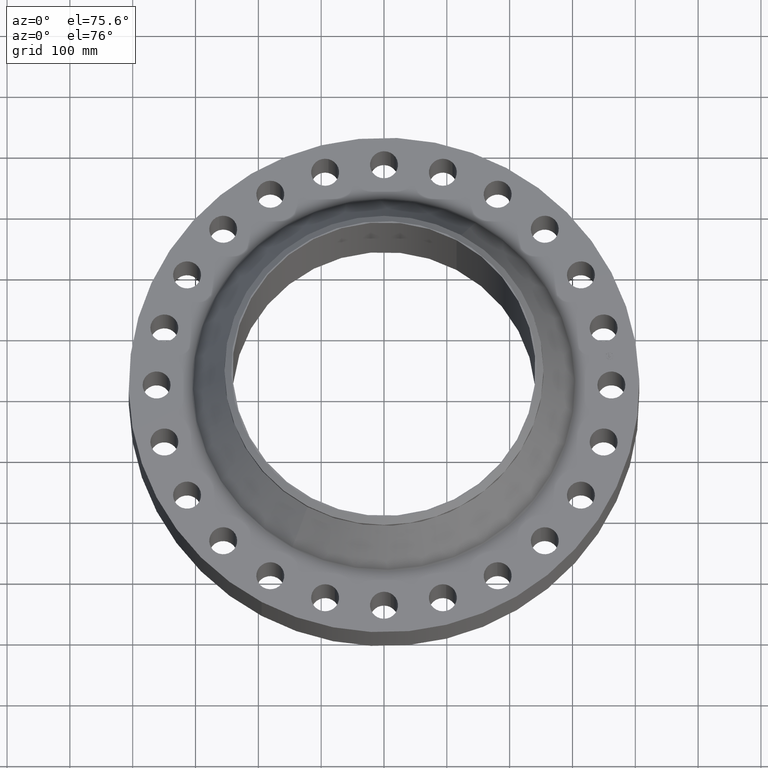
[diagram: clean part render]
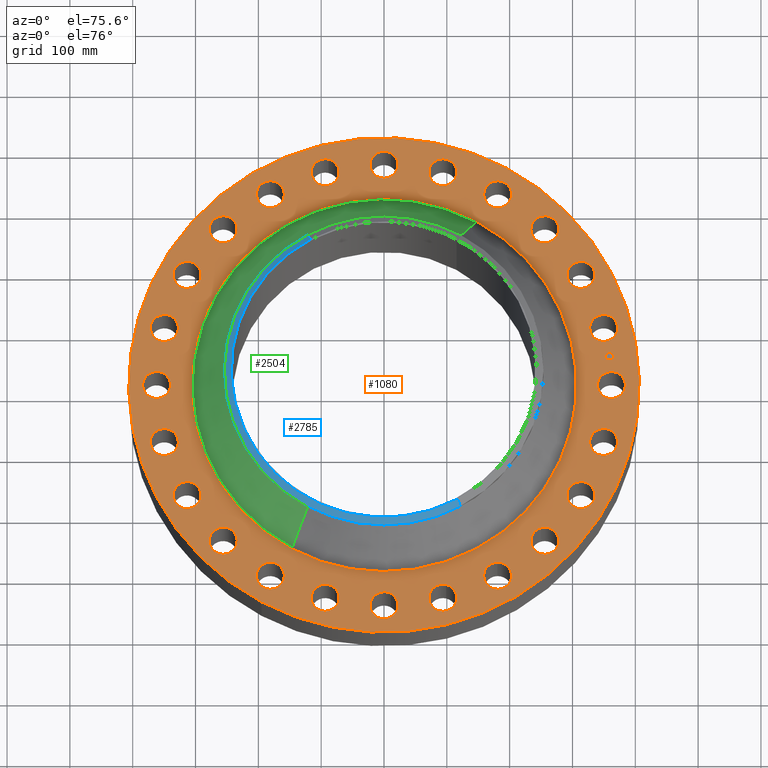
[diagram: same view with three faces highlighted in distinct colors, each labeled with its STEP entity id]
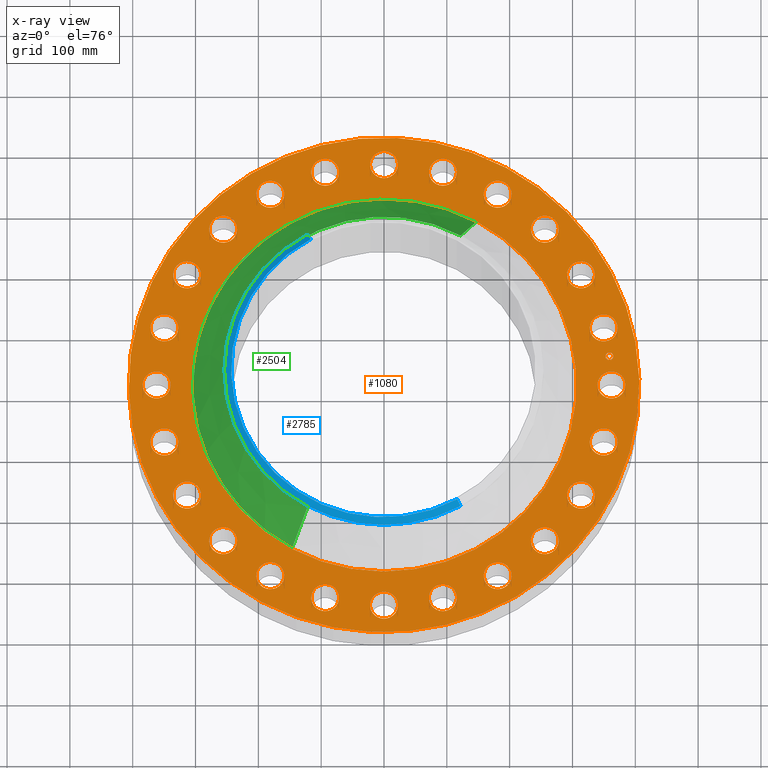
[diagram: x-ray of the same camera — body ghosted, the three highlighted faces saturated]
A machine part, auxiliary view with three faces highlighted in distinct colors.
The next image is the same camera in x-ray (body ghosted, the three faces saturated) — at least one of them is partly hidden behind the body in this view.
Their STEP definitions:

[orange] entity #1080 — the highlighted planar face has unit normal (0, 0, -1).
#119=AXIS2_PLACEMENT_3D('Circle Axis2P3D',#117,#118,$) ;
#606=AXIS2_PLACEMENT_3D('Plane Axis2P3D',#603,#604,#605) ;
#610=AXIS2_PLACEMENT_3D('Circle Axis2P3D',#608,#609,$) ;
#619=AXIS2_PLACEMENT_3D('Circle Axis2P3D',#617,#618,$) ;
#632=AXIS2_PLACEMENT_3D('Circle Axis2P3D',#630,#631,$) ;
#641=AXIS2_PLACEMENT_3D('Circle Axis2P3D',#639,#640,$) ;
#650=AXIS2_PLACEMENT_3D('Circle Axis2P3D',#648,#649,$) ;
#659=AXIS2_PLACEMENT_3D('Circle Axis2P3D',#657,#658,$) ;
#668=AXIS2_PLACEMENT_3D('Circle Axis2P3D',#666,#667,$) ;
#677=AXIS2_PLACEMENT_3D('Circle Axis2P3D',#675,#676,$) ;
#686=AXIS2_PLACEMENT_3D('Circle Axis2P3D',#684,#685,$) ;
#695=AXIS2_PLACEMENT_3D('Circle Axis2P3D',#693,#694,$) ;
#704=AXIS2_PLACEMENT_3D('Circle Axis2P3D',#702,#703,$) ;
#713=AXIS2_PLACEMENT_3D('Circle Axis2P3D',#711,#712,$) ;
#722=AXIS2_PLACEMENT_3D('Circle Axis2P3D',#720,#721,$) ;
#731=AXIS2_PLACEMENT_3D('Circle Axis2P3D',#729,#730,$) ;
#740=AXIS2_PLACEMENT_3D('Circle Axis2P3D',#738,#739,$) ;
#749=AXIS2_PLACEMENT_3D('Circle Axis2P3D',#747,#748,$) ;
#758=AXIS2_PLACEMENT_3D('Circle Axis2P3D',#756,#757,$) ;
#767=AXIS2_PLACEMENT_3D('Circle Axis2P3D',#765,#766,$) ;
#776=AXIS2_PLACEMENT_3D('Circle Axis2P3D',#774,#775,$) ;
#785=AXIS2_PLACEMENT_3D('Circle Axis2P3D',#783,#784,$) ;
#794=AXIS2_PLACEMENT_3D('Circle Axis2P3D',#792,#793,$) ;
#803=AXIS2_PLACEMENT_3D('Circle Axis2P3D',#801,#802,$) ;
#812=AXIS2_PLACEMENT_3D('Circle Axis2P3D',#810,#811,$) ;
#821=AXIS2_PLACEMENT_3D('Circle Axis2P3D',#819,#820,$) ;
#830=AXIS2_PLACEMENT_3D('Circle Axis2P3D',#828,#829,$) ;
#839=AXIS2_PLACEMENT_3D('Circle Axis2P3D',#837,#838,$) ;
#848=AXIS2_PLACEMENT_3D('Circle Axis2P3D',#846,#847,$) ;
#857=AXIS2_PLACEMENT_3D('Circle Axis2P3D',#855,#856,$) ;
#866=AXIS2_PLACEMENT_3D('Circle Axis2P3D',#864,#865,$) ;
#875=AXIS2_PLACEMENT_3D('Circle Axis2P3D',#873,#874,$) ;
#884=AXIS2_PLACEMENT_3D('Circle Axis2P3D',#882,#883,$) ;
#893=AXIS2_PLACEMENT_3D('Circle Axis2P3D',#891,#892,$) ;
#902=AXIS2_PLACEMENT_3D('Circle Axis2P3D',#900,#901,$) ;
#911=AXIS2_PLACEMENT_3D('Circle Axis2P3D',#909,#910,$) ;
#920=AXIS2_PLACEMENT_3D('Circle Axis2P3D',#918,#919,$) ;
#929=AXIS2_PLACEMENT_3D('Circle Axis2P3D',#927,#928,$) ;
#938=AXIS2_PLACEMENT_3D('Circle Axis2P3D',#936,#937,$) ;
#947=AXIS2_PLACEMENT_3D('Circle Axis2P3D',#945,#946,$) ;
#956=AXIS2_PLACEMENT_3D('Circle Axis2P3D',#954,#955,$) ;
#965=AXIS2_PLACEMENT_3D('Circle Axis2P3D',#963,#964,$) ;
#974=AXIS2_PLACEMENT_3D('Circle Axis2P3D',#972,#973,$) ;
#983=AXIS2_PLACEMENT_3D('Circle Axis2P3D',#981,#982,$) ;
#992=AXIS2_PLACEMENT_3D('Circle Axis2P3D',#990,#991,$) ;
#1001=AXIS2_PLACEMENT_3D('Circle Axis2P3D',#999,#1000,$) ;
#1010=AXIS2_PLACEMENT_3D('Circle Axis2P3D',#1008,#1009,$) ;
#1019=AXIS2_PLACEMENT_3D('Circle Axis2P3D',#1017,#1018,$) ;
#1028=AXIS2_PLACEMENT_3D('Circle Axis2P3D',#1026,#1027,$) ;
#1037=AXIS2_PLACEMENT_3D('Circle Axis2P3D',#1035,#1036,$) ;
#1046=AXIS2_PLACEMENT_3D('Circle Axis2P3D',#1044,#1045,$) ;
#1055=AXIS2_PLACEMENT_3D('Circle Axis2P3D',#1053,#1054,$) ;
#1064=AXIS2_PLACEMENT_3D('Circle Axis2P3D',#1062,#1063,$) ;
#1073=AXIS2_PLACEMENT_3D('Circle Axis2P3D',#1071,#1072,$) ;
#46=CARTESIAN_POINT('Vertex',(13.4821152584,0.419497346281,3.5)) ;
#72=CARTESIAN_POINT('Vertex',(15.0178847417,-0.419497346332,3.50000000001)) ;
#76=CARTESIAN_POINT('Control Point',(13.4821152584,0.419497346281,3.50000000001)) ;
#77=CARTESIAN_POINT('Control Point',(13.5480097475,0.540116399441,3.50000000001)) ;
#78=CARTESIAN_POINT('Control Point',(13.6375877323,0.647797099928,3.50000000001)) ;
#79=CARTESIAN_POINT('Control Point',(13.7474808929,0.736318148174,3.50000000001)) ;
#80=CARTESIAN_POINT('Control Point',(13.9960549468,0.865501483568,3.50000000001)) ;
#81=CARTESIAN_POINT('Control Point',(14.2750208548,0.891102589652,3.50000000001)) ;
#82=CARTESIAN_POINT('Control Point',(14.4153208874,0.875990224079,3.50000000001)) ;
#83=CARTESIAN_POINT('Control Point',(14.6824356991,0.791568237363,3.5)) ;
#84=CARTESIAN_POINT('Control Point',(14.8977971,0.612412267824,3.5)) ;
#85=CARTESIAN_POINT('Control Point',(14.9863181483,0.502519107226,3.5)) ;
#86=CARTESIAN_POINT('Control Point',(15.1155014837,0.253945053254,3.5)) ;
#87=CARTESIAN_POINT('Control Point',(15.1411025898,-0.0250208547319,3.5)) ;
#88=CARTESIAN_POINT('Control Point',(15.1259902242,-0.165320887289,3.5)) ;
#89=CARTESIAN_POINT('Control Point',(15.0837792308,-0.298878293121,3.5)) ;
#90=CARTESIAN_POINT('Control Point',(15.0178847418,-0.419497346281,3.5)) ;
#117=CARTESIAN_POINT('Axis2P3D Location',(14.2500000001,0.,3.5)) ;
#603=CARTESIAN_POINT('Axis2P3D Location',(0.,16.0000000001,3.50000000001)) ;
#608=CARTESIAN_POINT('Axis2P3D Location',(-4.36664877485E-011,-8.12368545137E-013,3.50000000001)) ;
#612=CARTESIAN_POINT('Vertex',(7.67080861772,14.0413209903,3.50000000002)) ;
#614=CARTESIAN_POINT('Vertex',(-7.67080861772,-14.0413209903,3.50000000002)) ;
#617=CARTESIAN_POINT('Axis2P3D Location',(4.36664877485E-011,-4.85205576504E-011,3.50000000001)) ;
#630=CARTESIAN_POINT('Axis2P3D Location',(-4.36642498186E-011,-8.12368545137E-013,3.50000000001)) ;
#634=CARTESIAN_POINT('Vertex',(-5.7862085747,-10.5915837512,3.50000000001)) ;
#636=CARTESIAN_POINT('Vertex',(5.78620857468,10.5915837512,3.50000000001)) ;
#639=CARTESIAN_POINT('Axis2P3D Location',(1.28121485424E-011,-3.16644698213E-011,3.50000000001)) ;
#648=CARTESIAN_POINT('Axis2P3D Location',(13.7644430247,-3.68817139269,3.50000000001)) ;
#652=CARTESIAN_POINT('Vertex',(14.3975888257,-4.29211790914,3.50000000001)) ;
#654=CARTESIAN_POINT('Vertex',(13.1312972237,-3.08422487631,3.5)) ;
#657=CARTESIAN_POINT('Axis2P3D Location',(13.7644430247,-3.68817139276,3.50000000001)) ;
#666=CARTESIAN_POINT('Axis2P3D Location',(12.340862004,-7.12500000007,3.50000000001)) ;
#670=CARTESIAN_POINT('Vertex',(12.7961210243,-7.87223772956,3.5)) ;
#672=CARTESIAN_POINT('Vertex',(11.8856029837,-6.3777622705,3.5)) ;
#675=CARTESIAN_POINT('Axis2P3D Location',(12.340862004,-7.12500000005,3.50000000001)) ;
#684=CARTESIAN_POINT('Axis2P3D Location',(10.0762716319,-10.0762716319,3.50000000001)) ;
#688=CARTESIAN_POINT('Vertex',(10.3226187217,-10.9158775581,3.5)) ;
#690=CARTESIAN_POINT('Vertex',(9.82992454215,-9.23666570566,3.5)) ;
#693=CARTESIAN_POINT('Axis2P3D Location',(10.0762716319,-10.0762716319,3.50000000001)) ;
#702=CARTESIAN_POINT('Axis2P3D Location',(7.1250000001,-12.340862004,3.50000000001)) ;
#706=CARTESIAN_POINT('Vertex',(7.1456470122,-13.2156183706,3.50000000001)) ;
#708=CARTESIAN_POINT('Vertex',(7.1043529879,-11.4661056374,3.5)) ;
#711=CARTESIAN_POINT('Axis2P3D Location',(7.12500000002,-12.340862004,3.50000000001)) ;
#720=CARTESIAN_POINT('Axis2P3D Location',(3.68817139278,-13.7644430247,3.50000000001)) ;
#724=CARTESIAN_POINT('Vertex',(3.4817112675,-14.6147366309,3.50000000001)) ;
#726=CARTESIAN_POINT('Vertex',(3.89463151798,-12.9141494185,3.5)) ;
#729=CARTESIAN_POINT('Axis2P3D Location',(3.68817139271,-13.7644430247,3.50000000001)) ;
#738=CARTESIAN_POINT('Axis2P3D Location',(-1.28117988659E-011,-14.2500000001,3.50000000001)) ;
#742=CARTESIAN_POINT('Vertex',(-0.419497346271,-15.0178847417,3.50000000001)) ;
#744=CARTESIAN_POINT('Vertex',(0.419497346281,-13.4821152584,3.5)) ;
#747=CARTESIAN_POINT('Axis2P3D Location',(4.36654387189E-011,-14.2500000001,3.50000000001)) ;
#756=CARTESIAN_POINT('Axis2P3D Location',(-3.68817139274,-13.7644430247,3.50000000001)) ;
#760=CARTESIAN_POINT('Vertex',(-4.29211790915,-14.3975888257,3.50000000001)) ;
#762=CARTESIAN_POINT('Vertex',(-3.08422487631,-13.1312972237,3.5)) ;
#765=CARTESIAN_POINT('Axis2P3D Location',(-3.68817139274,-13.7644430247,3.50000000001)) ;
#774=CARTESIAN_POINT('Axis2P3D Location',(-7.12500000003,-12.340862004,3.50000000001)) ;
#778=CARTESIAN_POINT('Vertex',(-7.87223772956,-12.7961210243,3.5)) ;
#780=CARTESIAN_POINT('Vertex',(-6.3777622705,-11.8856029837,3.5)) ;
#783=CARTESIAN_POINT('Axis2P3D Location',(-7.12500000003,-12.340862004,3.50000000001)) ;
#792=CARTESIAN_POINT('Axis2P3D Location',(-10.0762716319,-10.0762716319,3.50000000001)) ;
#796=CARTESIAN_POINT('Vertex',(-10.9158775581,-10.3226187217,3.5)) ;
#798=CARTESIAN_POINT('Vertex',(-9.23666570566,-9.82992454215,3.5)) ;
#801=CARTESIAN_POINT('Axis2P3D Location',(-10.0762716319,-10.0762716319,3.50000000001)) ;
#810=CARTESIAN_POINT('Axis2P3D Location',(-12.340862004,-7.12500000008,3.50000000001)) ;
#814=CARTESIAN_POINT('Vertex',(-13.2156183706,-7.14564701218,3.50000000001)) ;
#816=CARTESIAN_POINT('Vertex',(-11.4661056374,-7.1043529879,3.5)) ;
#819=CARTESIAN_POINT('Axis2P3D Location',(-12.340862004,-7.12500000001,3.50000000001)) ;
#828=CARTESIAN_POINT('Axis2P3D Location',(-13.7644430247,-3.68817139275,3.50000000001)) ;
#832=CARTESIAN_POINT('Vertex',(-14.6147366309,-3.48171126749,3.50000000001)) ;
#834=CARTESIAN_POINT('Vertex',(-12.9141494185,-3.89463151798,3.5)) ;
#837=CARTESIAN_POINT('Axis2P3D Location',(-13.7644430247,-3.6881713927,3.50000000001)) ;
#846=CARTESIAN_POINT('Axis2P3D Location',(-14.2500000001,2.48119285398E-011,3.50000000001)) ;
#850=CARTESIAN_POINT('Vertex',(-15.0178847417,0.419497346283,3.50000000001)) ;
#852=CARTESIAN_POINT('Vertex',(-13.4821152584,-0.419497346281,3.5)) ;
#855=CARTESIAN_POINT('Axis2P3D Location',(-14.2500000001,-3.16667077512E-011,3.50000000001)) ;
#864=CARTESIAN_POINT('Axis2P3D Location',(-13.7644430247,3.68817139271,3.50000000001)) ;
#868=CARTESIAN_POINT('Vertex',(-14.3975888257,4.29211790917,3.50000000001)) ;
#870=CARTESIAN_POINT('Vertex',(-13.1312972237,3.08422487631,3.5)) ;
#873=CARTESIAN_POINT('Axis2P3D Location',(-13.7644430247,3.68817139279,3.50000000001)) ;
#882=CARTESIAN_POINT('Axis2P3D Location',(-12.340862004,7.12500000007,3.50000000001)) ;
#886=CARTESIAN_POINT('Vertex',(-12.7961210243,7.87223772956,3.5)) ;
#888=CARTESIAN_POINT('Vertex',(-11.8856029837,6.3777622705,3.5)) ;
#891=CARTESIAN_POINT('Axis2P3D Location',(-12.340862004,7.12500000003,3.50000000001)) ;
#900=CARTESIAN_POINT('Axis2P3D Location',(-10.0762716319,10.0762716319,3.50000000001)) ;
#904=CARTESIAN_POINT('Vertex',(-10.3226187217,10.9158775581,3.5)) ;
#906=CARTESIAN_POINT('Vertex',(-9.82992454215,9.23666570566,3.5)) ;
#909=CARTESIAN_POINT('Axis2P3D Location',(-10.0762716319,10.0762716319,3.50000000001)) ;
#918=CARTESIAN_POINT('Axis2P3D Location',(-7.12500000006,12.340862004,3.50000000001)) ;
#922=CARTESIAN_POINT('Vertex',(-7.1456470122,13.2156183706,3.50000000001)) ;
#924=CARTESIAN_POINT('Vertex',(-7.1043529879,11.4661056374,3.5)) ;
#927=CARTESIAN_POINT('Axis2P3D Location',(-7.12500000006,12.340862004,3.50000000001)) ;
#936=CARTESIAN_POINT('Axis2P3D Location',(-3.68817139277,13.7644430247,3.50000000001)) ;
#940=CARTESIAN_POINT('Vertex',(-3.4817112675,14.6147366309,3.50000000001)) ;
#942=CARTESIAN_POINT('Vertex',(-3.89463151798,12.9141494185,3.5)) ;
#945=CARTESIAN_POINT('Axis2P3D Location',(-3.6881713927,13.7644430247,3.50000000001)) ;
#954=CARTESIAN_POINT('Axis2P3D Location',(4.36654387189E-011,14.2500000001,3.50000000001)) ;
#958=CARTESIAN_POINT('Vertex',(0.419497346271,15.0178847417,3.50000000001)) ;
#960=CARTESIAN_POINT('Vertex',(-0.419497346281,13.4821152584,3.5)) ;
#963=CARTESIAN_POINT('Axis2P3D Location',(-4.36654387189E-011,14.2500000001,3.50000000001)) ;
#972=CARTESIAN_POINT('Axis2P3D Location',(3.68817139274,13.7644430247,3.50000000001)) ;
#976=CARTESIAN_POINT('Vertex',(4.29211790915,14.3975888257,3.50000000001)) ;
#978=CARTESIAN_POINT('Vertex',(3.08422487631,13.1312972237,3.5)) ;
#981=CARTESIAN_POINT('Axis2P3D Location',(3.68817139278,13.7644430247,3.50000000001)) ;
#990=CARTESIAN_POINT('Axis2P3D Location',(7.12500000004,12.340862004,3.50000000001)) ;
#994=CARTESIAN_POINT('Vertex',(7.87223772956,12.7961210243,3.5)) ;
#996=CARTESIAN_POINT('Vertex',(6.3777622705,11.8856029837,3.5)) ;
#999=CARTESIAN_POINT('Axis2P3D Location',(7.12500000006,12.340862004,3.50000000001)) ;
#1008=CARTESIAN_POINT('Axis2P3D Location',(10.0762716319,10.0762716319,3.50000000001)) ;
#1012=CARTESIAN_POINT('Vertex',(10.9158775581,10.3226187217,3.5)) ;
#1014=CARTESIAN_POINT('Vertex',(9.23666570566,9.82992454215,3.5)) ;
#1017=CARTESIAN_POINT('Axis2P3D Location',(10.0762716319,10.0762716319,3.50000000001)) ;
#1026=CARTESIAN_POINT('Axis2P3D Location',(12.340862004,7.12500000003,3.50000000001)) ;
#1030=CARTESIAN_POINT('Vertex',(13.2156183706,7.14564701213,3.50000000001)) ;
#1032=CARTESIAN_POINT('Vertex',(11.4661056374,7.1043529879,3.5)) ;
#1035=CARTESIAN_POINT('Axis2P3D Location',(12.340862004,7.12500000003,3.50000000001)) ;
#1044=CARTESIAN_POINT('Axis2P3D Location',(13.7644430247,3.68817139271,3.50000000001)) ;
#1048=CARTESIAN_POINT('Vertex',(14.6147366309,3.48171126744,3.50000000001)) ;
#1050=CARTESIAN_POINT('Vertex',(12.9141494185,3.89463151798,3.5)) ;
#1053=CARTESIAN_POINT('Axis2P3D Location',(13.7644430247,3.68817139271,3.50000000001)) ;
#1062=CARTESIAN_POINT('Axis2P3D Location',(14.1280892746,1.85999823915,3.50000000001)) ;
#1066=CARTESIAN_POINT('Vertex',(14.0957840421,2.10538084231,3.50000000001)) ;
#1068=CARTESIAN_POINT('Vertex',(14.1603945072,1.61461563599,3.50000000001)) ;
#1071=CARTESIAN_POINT('Axis2P3D Location',(14.1280892745,1.85999823914,3.50000000001)) ;
#118=DIRECTION('Axis2P3D Direction',(0.,-0.,-0.0393700787402)) ;
#604=DIRECTION('Axis2P3D Direction',(0.,0.,-0.0393700787402)) ;
#605=DIRECTION('Axis2P3D XDirection',(0.0393700787402,0.,0.)) ;
#609=DIRECTION('Axis2P3D Direction',(0.,0.,-0.0393700787402)) ;
#618=DIRECTION('Axis2P3D Direction',(0.,0.,-0.0393700787402)) ;
#631=DIRECTION('Axis2P3D Direction',(0.,0.,-0.0393700787402)) ;
#640=DIRECTION('Axis2P3D Direction',(0.,0.,-0.0393700787402)) ;
#649=DIRECTION('Axis2P3D Direction',(0.,0.,-0.0393700787402)) ;
#658=DIRECTION('Axis2P3D Direction',(0.,0.,-0.0393700787402)) ;
#667=DIRECTION('Axis2P3D Direction',(0.,0.,-0.0393700787402)) ;
#676=DIRECTION('Axis2P3D Direction',(0.,0.,-0.0393700787402)) ;
#685=DIRECTION('Axis2P3D Direction',(0.,0.,-0.0393700787402)) ;
#694=DIRECTION('Axis2P3D Direction',(0.,0.,-0.0393700787402)) ;
#703=DIRECTION('Axis2P3D Direction',(0.,0.,-0.0393700787402)) ;
#712=DIRECTION('Axis2P3D Direction',(0.,0.,-0.0393700787402)) ;
#721=DIRECTION('Axis2P3D Direction',(0.,0.,-0.0393700787402)) ;
#730=DIRECTION('Axis2P3D Direction',(0.,0.,-0.0393700787402)) ;
#739=DIRECTION('Axis2P3D Direction',(0.,0.,-0.0393700787402)) ;
#748=DIRECTION('Axis2P3D Direction',(0.,0.,-0.0393700787402)) ;
#757=DIRECTION('Axis2P3D Direction',(0.,0.,-0.0393700787402)) ;
#766=DIRECTION('Axis2P3D Direction',(0.,0.,-0.0393700787402)) ;
#775=DIRECTION('Axis2P3D Direction',(0.,0.,-0.0393700787402)) ;
#784=DIRECTION('Axis2P3D Direction',(0.,0.,-0.0393700787402)) ;
#793=DIRECTION('Axis2P3D Direction',(0.,0.,-0.0393700787402)) ;
#802=DIRECTION('Axis2P3D Direction',(0.,0.,-0.0393700787402)) ;
#811=DIRECTION('Axis2P3D Direction',(0.,0.,-0.0393700787402)) ;
#820=DIRECTION('Axis2P3D Direction',(0.,0.,-0.0393700787402)) ;
#829=DIRECTION('Axis2P3D Direction',(0.,0.,-0.0393700787402)) ;
#838=DIRECTION('Axis2P3D Direction',(0.,0.,-0.0393700787402)) ;
#847=DIRECTION('Axis2P3D Direction',(0.,0.,-0.0393700787402)) ;
#856=DIRECTION('Axis2P3D Direction',(0.,0.,-0.0393700787402)) ;
#865=DIRECTION('Axis2P3D Direction',(0.,0.,-0.0393700787402)) ;
#874=DIRECTION('Axis2P3D Direction',(0.,0.,-0.0393700787402)) ;
#883=DIRECTION('Axis2P3D Direction',(0.,0.,-0.0393700787402)) ;
#892=DIRECTION('Axis2P3D Direction',(0.,0.,-0.0393700787402)) ;
#901=DIRECTION('Axis2P3D Direction',(0.,0.,-0.0393700787402)) ;
#910=DIRECTION('Axis2P3D Direction',(0.,0.,-0.0393700787402)) ;
#919=DIRECTION('Axis2P3D Direction',(0.,0.,-0.0393700787402)) ;
#928=DIRECTION('Axis2P3D Direction',(0.,0.,-0.0393700787402)) ;
#937=DIRECTION('Axis2P3D Direction',(0.,0.,-0.0393700787402)) ;
#946=DIRECTION('Axis2P3D Direction',(0.,0.,-0.0393700787402)) ;
#955=DIRECTION('Axis2P3D Direction',(0.,0.,-0.0393700787402)) ;
#964=DIRECTION('Axis2P3D Direction',(0.,0.,-0.0393700787402)) ;
#973=DIRECTION('Axis2P3D Direction',(0.,0.,-0.0393700787402)) ;
#982=DIRECTION('Axis2P3D Direction',(0.,0.,-0.0393700787402)) ;
#991=DIRECTION('Axis2P3D Direction',(0.,0.,-0.0393700787402)) ;
#1000=DIRECTION('Axis2P3D Direction',(0.,0.,-0.0393700787402)) ;
#1009=DIRECTION('Axis2P3D Direction',(0.,0.,-0.0393700787402)) ;
#1018=DIRECTION('Axis2P3D Direction',(0.,0.,-0.0393700787402)) ;
#1027=DIRECTION('Axis2P3D Direction',(0.,0.,-0.0393700787402)) ;
#1036=DIRECTION('Axis2P3D Direction',(0.,0.,-0.0393700787402)) ;
#1045=DIRECTION('Axis2P3D Direction',(0.,0.,-0.0393700787402)) ;
#1054=DIRECTION('Axis2P3D Direction',(0.,0.,-0.0393700787402)) ;
#1063=DIRECTION('Axis2P3D Direction',(0.,0.,-0.0393700787402)) ;
#1072=DIRECTION('Axis2P3D Direction',(0.,0.,-0.0393700787402)) ;
#623=ORIENTED_EDGE('',*,*,#616,.F.) ;
#624=ORIENTED_EDGE('',*,*,#621,.F.) ;
#627=ORIENTED_EDGE('',*,*,#91,.T.) ;
#628=ORIENTED_EDGE('',*,*,#121,.T.) ;
#645=ORIENTED_EDGE('',*,*,#638,.T.) ;
#646=ORIENTED_EDGE('',*,*,#643,.T.) ;
#663=ORIENTED_EDGE('',*,*,#656,.T.) ;
#664=ORIENTED_EDGE('',*,*,#661,.T.) ;
#681=ORIENTED_EDGE('',*,*,#674,.T.) ;
#682=ORIENTED_EDGE('',*,*,#679,.T.) ;
#699=ORIENTED_EDGE('',*,*,#692,.T.) ;
#700=ORIENTED_EDGE('',*,*,#697,.T.) ;
#717=ORIENTED_EDGE('',*,*,#710,.T.) ;
#718=ORIENTED_EDGE('',*,*,#715,.T.) ;
#735=ORIENTED_EDGE('',*,*,#728,.T.) ;
#736=ORIENTED_EDGE('',*,*,#733,.T.) ;
#753=ORIENTED_EDGE('',*,*,#746,.T.) ;
#754=ORIENTED_EDGE('',*,*,#751,.T.) ;
#771=ORIENTED_EDGE('',*,*,#764,.T.) ;
#772=ORIENTED_EDGE('',*,*,#769,.T.) ;
#789=ORIENTED_EDGE('',*,*,#782,.T.) ;
#790=ORIENTED_EDGE('',*,*,#787,.T.) ;
#807=ORIENTED_EDGE('',*,*,#800,.T.) ;
#808=ORIENTED_EDGE('',*,*,#805,.T.) ;
#825=ORIENTED_EDGE('',*,*,#818,.T.) ;
#826=ORIENTED_EDGE('',*,*,#823,.T.) ;
#843=ORIENTED_EDGE('',*,*,#836,.T.) ;
#844=ORIENTED_EDGE('',*,*,#841,.T.) ;
#861=ORIENTED_EDGE('',*,*,#854,.T.) ;
#862=ORIENTED_EDGE('',*,*,#859,.T.) ;
#879=ORIENTED_EDGE('',*,*,#872,.T.) ;
#880=ORIENTED_EDGE('',*,*,#877,.T.) ;
#897=ORIENTED_EDGE('',*,*,#890,.T.) ;
#898=ORIENTED_EDGE('',*,*,#895,.T.) ;
#915=ORIENTED_EDGE('',*,*,#908,.T.) ;
#916=ORIENTED_EDGE('',*,*,#913,.T.) ;
#933=ORIENTED_EDGE('',*,*,#926,.T.) ;
#934=ORIENTED_EDGE('',*,*,#931,.T.) ;
#951=ORIENTED_EDGE('',*,*,#944,.T.) ;
#952=ORIENTED_EDGE('',*,*,#949,.T.) ;
#969=ORIENTED_EDGE('',*,*,#962,.T.) ;
#970=ORIENTED_EDGE('',*,*,#967,.T.) ;
#987=ORIENTED_EDGE('',*,*,#980,.T.) ;
#988=ORIENTED_EDGE('',*,*,#985,.T.) ;
#1005=ORIENTED_EDGE('',*,*,#998,.T.) ;
#1006=ORIENTED_EDGE('',*,*,#1003,.T.) ;
#1023=ORIENTED_EDGE('',*,*,#1016,.T.) ;
#1024=ORIENTED_EDGE('',*,*,#1021,.T.) ;
#1041=ORIENTED_EDGE('',*,*,#1034,.T.) ;
#1042=ORIENTED_EDGE('',*,*,#1039,.T.) ;
#1059=ORIENTED_EDGE('',*,*,#1052,.T.) ;
#1060=ORIENTED_EDGE('',*,*,#1057,.T.) ;
#1077=ORIENTED_EDGE('',*,*,#1070,.T.) ;
#1078=ORIENTED_EDGE('',*,*,#1075,.T.) ;
#629=FACE_BOUND('',#626,.T.) ;
#647=FACE_BOUND('',#644,.T.) ;
#665=FACE_BOUND('',#662,.T.) ;
#683=FACE_BOUND('',#680,.T.) ;
#701=FACE_BOUND('',#698,.T.) ;
#719=FACE_BOUND('',#716,.T.) ;
#737=FACE_BOUND('',#734,.T.) ;
#755=FACE_BOUND('',#752,.T.) ;
#773=FACE_BOUND('',#770,.T.) ;
#791=FACE_BOUND('',#788,.T.) ;
#809=FACE_BOUND('',#806,.T.) ;
#827=FACE_BOUND('',#824,.T.) ;
#845=FACE_BOUND('',#842,.T.) ;
#863=FACE_BOUND('',#860,.T.) ;
#881=FACE_BOUND('',#878,.T.) ;
#899=FACE_BOUND('',#896,.T.) ;
#917=FACE_BOUND('',#914,.T.) ;
#935=FACE_BOUND('',#932,.T.) ;
#953=FACE_BOUND('',#950,.T.) ;
#971=FACE_BOUND('',#968,.T.) ;
#989=FACE_BOUND('',#986,.T.) ;
#1007=FACE_BOUND('',#1004,.T.) ;
#1025=FACE_BOUND('',#1022,.T.) ;
#1043=FACE_BOUND('',#1040,.T.) ;
#1061=FACE_BOUND('',#1058,.T.) ;
#1079=FACE_BOUND('',#1076,.T.) ;
#1080=ADVANCED_FACE('PartBody',(#625,#629,#647,#665,#683,#701,#719,#737,#755,#773,#791,#809,#827,#845,#863,#881,#899,#917,#935,#953,#971,#989,#1007,#1025,#1043,#1061,#1079),#607,.F.) ;
#75=B_SPLINE_CURVE_WITH_KNOTS('',5,(#76,#77,#78,#79,#80,#81,#82,#83,#84,#85,#86,#87,#88,#89,#90),.UNSPECIFIED.,.F.,.U.,(6,3,3,3,6),(-34.9109483632,-17.4554741816,3.5527136788E-015,17.4554741816,34.9109483632),.UNSPECIFIED.) ;
#120=CIRCLE('generated circle',#119,0.875000000004) ;
#611=CIRCLE('generated circle',#610,16.0000000001) ;
#620=CIRCLE('generated circle',#619,16.0000000001) ;
#633=CIRCLE('generated circle',#632,12.0690453653) ;
#642=CIRCLE('generated circle',#641,12.0690453653) ;
#651=CIRCLE('generated circle',#650,0.875000000022) ;
#660=CIRCLE('generated circle',#659,0.875000000022) ;
#669=CIRCLE('generated circle',#668,0.874999999996) ;
#678=CIRCLE('generated circle',#677,0.874999999996) ;
#687=CIRCLE('generated circle',#686,0.875000000014) ;
#696=CIRCLE('generated circle',#695,0.875000000014) ;
#705=CIRCLE('generated circle',#704,0.875000000033) ;
#714=CIRCLE('generated circle',#713,0.875000000033) ;
#723=CIRCLE('generated circle',#722,0.875000000016) ;
#732=CIRCLE('generated circle',#731,0.875000000016) ;
#741=CIRCLE('generated circle',#740,0.874999999984) ;
#750=CIRCLE('generated circle',#749,0.874999999984) ;
#759=CIRCLE('generated circle',#758,0.874999999995) ;
#768=CIRCLE('generated circle',#767,0.874999999995) ;
#777=CIRCLE('generated circle',#776,0.874999999996) ;
#786=CIRCLE('generated circle',#785,0.874999999996) ;
#795=CIRCLE('generated circle',#794,0.875000000025) ;
#804=CIRCLE('generated circle',#803,0.875000000025) ;
#813=CIRCLE('generated circle',#812,0.875000000033) ;
#822=CIRCLE('generated circle',#821,0.875000000033) ;
#831=CIRCLE('generated circle',#830,0.875000000016) ;
#840=CIRCLE('generated circle',#839,0.875000000016) ;
#849=CIRCLE('generated circle',#848,0.874999999984) ;
#858=CIRCLE('generated circle',#857,0.874999999984) ;
#867=CIRCLE('generated circle',#866,0.875000000022) ;
#876=CIRCLE('generated circle',#875,0.875000000022) ;
#885=CIRCLE('generated circle',#884,0.874999999964) ;
#894=CIRCLE('generated circle',#893,0.874999999964) ;
#903=CIRCLE('generated circle',#902,0.875000000014) ;
#912=CIRCLE('generated circle',#911,0.875000000014) ;
#921=CIRCLE('generated circle',#920,0.874999999996) ;
#930=CIRCLE('generated circle',#929,0.874999999996) ;
#939=CIRCLE('generated circle',#938,0.875000000016) ;
#948=CIRCLE('generated circle',#947,0.875000000016) ;
#957=CIRCLE('generated circle',#956,0.874999999984) ;
#966=CIRCLE('generated circle',#965,0.874999999984) ;
#975=CIRCLE('generated circle',#974,0.875000000022) ;
#984=CIRCLE('generated circle',#983,0.875000000022) ;
#993=CIRCLE('generated circle',#992,0.875000000015) ;
#1002=CIRCLE('generated circle',#1001,0.875000000015) ;
#1011=CIRCLE('generated circle',#1010,0.875000000014) ;
#1020=CIRCLE('generated circle',#1019,0.875000000014) ;
#1029=CIRCLE('generated circle',#1028,0.875000000032) ;
#1038=CIRCLE('generated circle',#1037,0.875000000032) ;
#1047=CIRCLE('generated circle',#1046,0.875000000025) ;
#1056=CIRCLE('generated circle',#1055,0.875000000025) ;
#1065=CIRCLE('generated circle',#1064,0.247499999966) ;
#1074=CIRCLE('generated circle',#1073,0.247499999966) ;
#91=EDGE_CURVE('',#47,#73,#75,.T.) ;
#121=EDGE_CURVE('',#73,#47,#120,.T.) ;
#616=EDGE_CURVE('',#613,#615,#611,.T.) ;
#621=EDGE_CURVE('',#615,#613,#620,.T.) ;
#638=EDGE_CURVE('',#635,#637,#633,.T.) ;
#643=EDGE_CURVE('',#637,#635,#642,.T.) ;
#656=EDGE_CURVE('',#653,#655,#651,.T.) ;
#661=EDGE_CURVE('',#655,#653,#660,.T.) ;
#674=EDGE_CURVE('',#671,#673,#669,.T.) ;
#679=EDGE_CURVE('',#673,#671,#678,.T.) ;
#692=EDGE_CURVE('',#689,#691,#687,.T.) ;
#697=EDGE_CURVE('',#691,#689,#696,.T.) ;
#710=EDGE_CURVE('',#707,#709,#705,.T.) ;
#715=EDGE_CURVE('',#709,#707,#714,.T.) ;
#728=EDGE_CURVE('',#725,#727,#723,.T.) ;
#733=EDGE_CURVE('',#727,#725,#732,.T.) ;
#746=EDGE_CURVE('',#743,#745,#741,.T.) ;
#751=EDGE_CURVE('',#745,#743,#750,.T.) ;
#764=EDGE_CURVE('',#761,#763,#759,.T.) ;
#769=EDGE_CURVE('',#763,#761,#768,.T.) ;
#782=EDGE_CURVE('',#779,#781,#777,.T.) ;
#787=EDGE_CURVE('',#781,#779,#786,.T.) ;
#800=EDGE_CURVE('',#797,#799,#795,.T.) ;
#805=EDGE_CURVE('',#799,#797,#804,.T.) ;
#818=EDGE_CURVE('',#815,#817,#813,.T.) ;
#823=EDGE_CURVE('',#817,#815,#822,.T.) ;
#836=EDGE_CURVE('',#833,#835,#831,.T.) ;
#841=EDGE_CURVE('',#835,#833,#840,.T.) ;
#854=EDGE_CURVE('',#851,#853,#849,.T.) ;
#859=EDGE_CURVE('',#853,#851,#858,.T.) ;
#872=EDGE_CURVE('',#869,#871,#867,.T.) ;
#877=EDGE_CURVE('',#871,#869,#876,.T.) ;
#890=EDGE_CURVE('',#887,#889,#885,.T.) ;
#895=EDGE_CURVE('',#889,#887,#894,.T.) ;
#908=EDGE_CURVE('',#905,#907,#903,.T.) ;
#913=EDGE_CURVE('',#907,#905,#912,.T.) ;
#926=EDGE_CURVE('',#923,#925,#921,.T.) ;
#931=EDGE_CURVE('',#925,#923,#930,.T.) ;
#944=EDGE_CURVE('',#941,#943,#939,.T.) ;
#949=EDGE_CURVE('',#943,#941,#948,.T.) ;
#962=EDGE_CURVE('',#959,#961,#957,.T.) ;
#967=EDGE_CURVE('',#961,#959,#966,.T.) ;
#980=EDGE_CURVE('',#977,#979,#975,.T.) ;
#985=EDGE_CURVE('',#979,#977,#984,.T.) ;
#998=EDGE_CURVE('',#995,#997,#993,.T.) ;
#1003=EDGE_CURVE('',#997,#995,#1002,.T.) ;
#1016=EDGE_CURVE('',#1013,#1015,#1011,.T.) ;
#1021=EDGE_CURVE('',#1015,#1013,#1020,.T.) ;
#1034=EDGE_CURVE('',#1031,#1033,#1029,.T.) ;
#1039=EDGE_CURVE('',#1033,#1031,#1038,.T.) ;
#1052=EDGE_CURVE('',#1049,#1051,#1047,.T.) ;
#1057=EDGE_CURVE('',#1051,#1049,#1056,.T.) ;
#1070=EDGE_CURVE('',#1067,#1069,#1065,.T.) ;
#1075=EDGE_CURVE('',#1069,#1067,#1074,.T.) ;
#622=EDGE_LOOP('',(#623,#624)) ;
#626=EDGE_LOOP('',(#627,#628)) ;
#644=EDGE_LOOP('',(#645,#646)) ;
#662=EDGE_LOOP('',(#663,#664)) ;
#680=EDGE_LOOP('',(#681,#682)) ;
#698=EDGE_LOOP('',(#699,#700)) ;
#716=EDGE_LOOP('',(#717,#718)) ;
#734=EDGE_LOOP('',(#735,#736)) ;
#752=EDGE_LOOP('',(#753,#754)) ;
#770=EDGE_LOOP('',(#771,#772)) ;
#788=EDGE_LOOP('',(#789,#790)) ;
#806=EDGE_LOOP('',(#807,#808)) ;
#824=EDGE_LOOP('',(#825,#826)) ;
#842=EDGE_LOOP('',(#843,#844)) ;
#860=EDGE_LOOP('',(#861,#862)) ;
#878=EDGE_LOOP('',(#879,#880)) ;
#896=EDGE_LOOP('',(#897,#898)) ;
#914=EDGE_LOOP('',(#915,#916)) ;
#932=EDGE_LOOP('',(#933,#934)) ;
#950=EDGE_LOOP('',(#951,#952)) ;
#968=EDGE_LOOP('',(#969,#970)) ;
#986=EDGE_LOOP('',(#987,#988)) ;
#1004=EDGE_LOOP('',(#1005,#1006)) ;
#1022=EDGE_LOOP('',(#1023,#1024)) ;
#1040=EDGE_LOOP('',(#1041,#1042)) ;
#1058=EDGE_LOOP('',(#1059,#1060)) ;
#1076=EDGE_LOOP('',(#1077,#1078)) ;
#625=FACE_OUTER_BOUND('',#622,.T.) ;
#607=PLANE('',#606) ;
#47=VERTEX_POINT('',#46) ;
#73=VERTEX_POINT('',#72) ;
#613=VERTEX_POINT('',#612) ;
#615=VERTEX_POINT('',#614) ;
#635=VERTEX_POINT('',#634) ;
#637=VERTEX_POINT('',#636) ;
#653=VERTEX_POINT('',#652) ;
#655=VERTEX_POINT('',#654) ;
#671=VERTEX_POINT('',#670) ;
#673=VERTEX_POINT('',#672) ;
#689=VERTEX_POINT('',#688) ;
#691=VERTEX_POINT('',#690) ;
#707=VERTEX_POINT('',#706) ;
#709=VERTEX_POINT('',#708) ;
#725=VERTEX_POINT('',#724) ;
#727=VERTEX_POINT('',#726) ;
#743=VERTEX_POINT('',#742) ;
#745=VERTEX_POINT('',#744) ;
#761=VERTEX_POINT('',#760) ;
#763=VERTEX_POINT('',#762) ;
#779=VERTEX_POINT('',#778) ;
#781=VERTEX_POINT('',#780) ;
#797=VERTEX_POINT('',#796) ;
#799=VERTEX_POINT('',#798) ;
#815=VERTEX_POINT('',#814) ;
#817=VERTEX_POINT('',#816) ;
#833=VERTEX_POINT('',#832) ;
#835=VERTEX_POINT('',#834) ;
#851=VERTEX_POINT('',#850) ;
#853=VERTEX_POINT('',#852) ;
#869=VERTEX_POINT('',#868) ;
#871=VERTEX_POINT('',#870) ;
#887=VERTEX_POINT('',#886) ;
#889=VERTEX_POINT('',#888) ;
#905=VERTEX_POINT('',#904) ;
#907=VERTEX_POINT('',#906) ;
#923=VERTEX_POINT('',#922) ;
#925=VERTEX_POINT('',#924) ;
#941=VERTEX_POINT('',#940) ;
#943=VERTEX_POINT('',#942) ;
#959=VERTEX_POINT('',#958) ;
#961=VERTEX_POINT('',#960) ;
#977=VERTEX_POINT('',#976) ;
#979=VERTEX_POINT('',#978) ;
#995=VERTEX_POINT('',#994) ;
#997=VERTEX_POINT('',#996) ;
#1013=VERTEX_POINT('',#1012) ;
#1015=VERTEX_POINT('',#1014) ;
#1031=VERTEX_POINT('',#1030) ;
#1033=VERTEX_POINT('',#1032) ;
#1049=VERTEX_POINT('',#1048) ;
#1051=VERTEX_POINT('',#1050) ;
#1067=VERTEX_POINT('',#1066) ;
#1069=VERTEX_POINT('',#1068) ;

[blue] entity #2785 — the highlighted conical surface has half-angle 52.5 deg.
#2455=AXIS2_PLACEMENT_3D('Circle Axis2P3D',#2453,#2454,$) ;
#2764=AXIS2_PLACEMENT_3D('Cone Axis2P3D',#2761,#2762,#2763) ;
#2768=AXIS2_PLACEMENT_3D('Circle Axis2P3D',#2766,#2767,$) ;
#2775=AXIS2_PLACEMENT_3D('Circle Axis2P3D',#2773,#2774,$) ;
#2448=CARTESIAN_POINT('Vertex',(4.59229265917,-8.40613532712,7.50000000003)) ;
#2450=CARTESIAN_POINT('Vertex',(-4.59229265917,8.40613532712,7.50000000003)) ;
#2453=CARTESIAN_POINT('Axis2P3D Location',(5.59482469102E-016,3.35689481461E-015,7.50000000003)) ;
#2720=CARTESIAN_POINT('Line Origine',(-4.69327402262,8.59098047303,7.33837797697)) ;
#2724=CARTESIAN_POINT('Vertex',(-4.79425538604,8.7758256189,7.17675595391)) ;
#2727=CARTESIAN_POINT('Line Origine',(4.69327402262,-8.59098047303,7.33837797697)) ;
#2731=CARTESIAN_POINT('Vertex',(4.79425538604,-8.7758256189,7.17675595391)) ;
#2761=CARTESIAN_POINT('Axis2P3D Location',(0.,0.,7.50000000003)) ;
#2766=CARTESIAN_POINT('Axis2P3D Location',(0.,0.,7.17675595393)) ;
#2770=CARTESIAN_POINT('Vertex',(-4.79425538604,-8.7758256189,7.17675595391)) ;
#2773=CARTESIAN_POINT('Axis2P3D Location',(0.,0.,7.17675595393)) ;
#2454=DIRECTION('Axis2P3D Direction',(0.,0.,-0.0393700787402)) ;
#2721=DIRECTION('Vector Direction',(-0.014974561121,0.02741075027,-0.023966985394)) ;
#2728=DIRECTION('Vector Direction',(0.014974561121,-0.02741075027,-0.023966985394)) ;
#2762=DIRECTION('Axis2P3D Direction',(-0.,-0.,-0.0393700787402)) ;
#2763=DIRECTION('Axis2P3D XDirection',(0.0188750212049,-0.0345504945626,0.)) ;
#2767=DIRECTION('Axis2P3D Direction',(-0.,0.,-0.0393700787402)) ;
#2774=DIRECTION('Axis2P3D Direction',(-0.,0.,-0.0393700787402)) ;
#2722=VECTOR('Line Direction',#2721,0.0393700787402) ;
#2729=VECTOR('Line Direction',#2728,0.0393700787402) ;
#2779=ORIENTED_EDGE('',*,*,#2733,.F.) ;
#2780=ORIENTED_EDGE('',*,*,#2457,.F.) ;
#2781=ORIENTED_EDGE('',*,*,#2726,.T.) ;
#2782=ORIENTED_EDGE('',*,*,#2772,.T.) ;
#2783=ORIENTED_EDGE('',*,*,#2777,.F.) ;
#2785=ADVANCED_FACE('PartBody',(#2784),#2765,.T.) ;
#2456=CIRCLE('generated circle',#2455,9.5787401575) ;
#2769=CIRCLE('generated circle',#2768,10.) ;
#2776=CIRCLE('generated circle',#2775,10.) ;
#2765=CONICAL_SURFACE('Cone',#2764,9.57874015752,0.916297857297) ;
#2457=EDGE_CURVE('',#2451,#2449,#2456,.F.) ;
#2726=EDGE_CURVE('',#2451,#2725,#2723,.T.) ;
#2733=EDGE_CURVE('',#2449,#2732,#2730,.T.) ;
#2772=EDGE_CURVE('',#2725,#2771,#2769,.F.) ;
#2777=EDGE_CURVE('',#2732,#2771,#2776,.T.) ;
#2778=EDGE_LOOP('',(#2779,#2780,#2781,#2782,#2783)) ;
#2784=FACE_OUTER_BOUND('',#2778,.T.) ;
#2723=LINE('Line',#2720,#2722) ;
#2730=LINE('Line',#2727,#2729) ;
#2449=VERTEX_POINT('',#2448) ;
#2451=VERTEX_POINT('',#2450) ;
#2725=VERTEX_POINT('',#2724) ;
#2732=VERTEX_POINT('',#2731) ;
#2771=VERTEX_POINT('',#2770) ;

[green] entity #2504 — the highlighted conical surface has half-angle 30.17 deg.
#2316=AXIS2_PLACEMENT_3D('Circle Axis2P3D',#2314,#2315,$) ;
#2477=AXIS2_PLACEMENT_3D('Cone Axis2P3D',#2474,#2475,#2476) ;
#2488=AXIS2_PLACEMENT_3D('Circle Axis2P3D',#2486,#2487,$) ;
#2311=CARTESIAN_POINT('Vertex',(-5.73647060035,-10.5005389999,3.55969256134)) ;
#2314=CARTESIAN_POINT('Axis2P3D Location',(0.,0.,3.55969256135)) ;
#2318=CARTESIAN_POINT('Vertex',(5.73647060035,10.5005389999,3.55969256135)) ;
#2474=CARTESIAN_POINT('Axis2P3D Location',(0.,0.,6.94053548147)) ;
#2479=CARTESIAN_POINT('Line Origine',(-5.26536299318,-9.63818230937,5.25011402139)) ;
#2483=CARTESIAN_POINT('Vertex',(-4.79425538604,-8.7758256189,6.94053548147)) ;
#2486=CARTESIAN_POINT('Axis2P3D Location',(0.,0.,6.94053548147)) ;
#2490=CARTESIAN_POINT('Vertex',(4.79425538605,8.77582561891,6.94053548145)) ;
#2493=CARTESIAN_POINT('Line Origine',(5.26536299318,9.63818230937,5.25011402139)) ;
#2315=DIRECTION('Axis2P3D Direction',(-0.,0.,-0.0393700787402)) ;
#2475=DIRECTION('Axis2P3D Direction',(0.,0.,-0.0393700787402)) ;
#2476=DIRECTION('Axis2P3D XDirection',(-0.0188750212049,-0.0345504945626,0.)) ;
#2480=DIRECTION('Vector Direction',(-0.00948586819826,-0.0173637652667,-0.0340370542247)) ;
#2487=DIRECTION('Axis2P3D Direction',(-0.,0.,-0.0393700787402)) ;
#2494=DIRECTION('Vector Direction',(0.00948586819826,0.0173637652667,-0.0340370542247)) ;
#2481=VECTOR('Line Direction',#2480,0.0393700787402) ;
#2495=VECTOR('Line Direction',#2494,0.0393700787402) ;
#2499=ORIENTED_EDGE('',*,*,#2320,.F.) ;
#2500=ORIENTED_EDGE('',*,*,#2485,.T.) ;
#2501=ORIENTED_EDGE('',*,*,#2492,.T.) ;
#2502=ORIENTED_EDGE('',*,*,#2497,.F.) ;
#2504=ADVANCED_FACE('PartBody',(#2503),#2478,.T.) ;
#2317=CIRCLE('generated circle',#2316,11.965300424) ;
#2489=CIRCLE('generated circle',#2488,10.) ;
#2478=CONICAL_SURFACE('Cone',#2477,10.,0.52655964068) ;
#2320=EDGE_CURVE('',#2312,#2319,#2317,.T.) ;
#2485=EDGE_CURVE('',#2312,#2484,#2482,.F.) ;
#2492=EDGE_CURVE('',#2484,#2491,#2489,.T.) ;
#2497=EDGE_CURVE('',#2319,#2491,#2496,.F.) ;
#2498=EDGE_LOOP('',(#2499,#2500,#2501,#2502)) ;
#2503=FACE_OUTER_BOUND('',#2498,.T.) ;
#2482=LINE('Line',#2479,#2481) ;
#2496=LINE('Line',#2493,#2495) ;
#2312=VERTEX_POINT('',#2311) ;
#2319=VERTEX_POINT('',#2318) ;
#2484=VERTEX_POINT('',#2483) ;
#2491=VERTEX_POINT('',#2490) ;